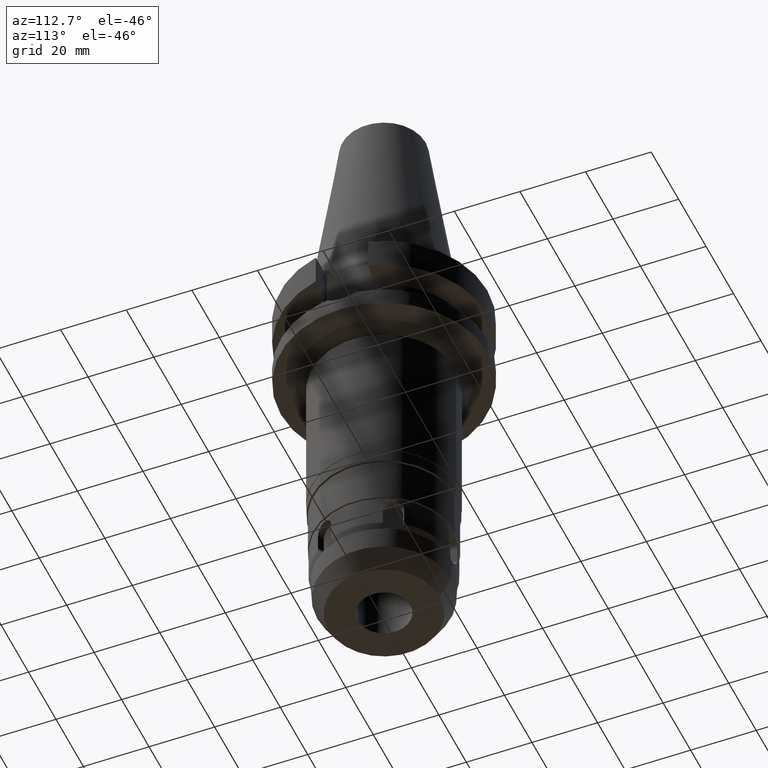
[diagram: clean part render]
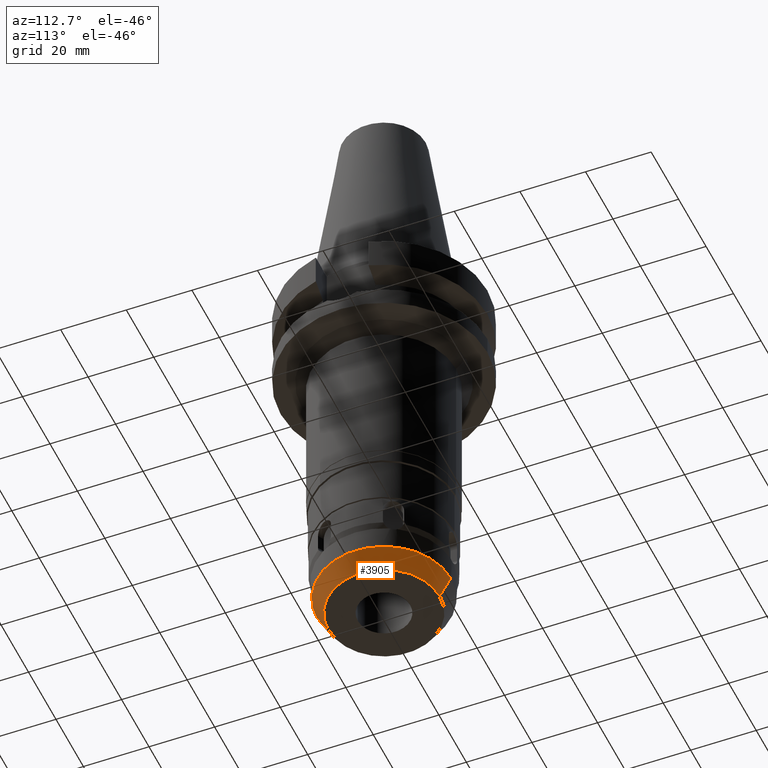
[diagram: same view with one face highlighted and labeled with its STEP entity id]
A machine part, auxiliary view. The second image highlights one B-rep face of the part: STEP entity #3905.
In plain terms, the highlighted conical surface has half-angle 30 deg.
Its self-contained STEP definition (entity closure, byte-faithful):
#1925=DIRECTION('',(-1.655371514058E-14,4.999999999999E-1,-8.660254037845E-1));
#1926=VECTOR('',#1925,6.768854555979E0);
#1927=CARTESIAN_POINT('',(1.106599301772E-13,-2.038442727799E1,-1.14138E2));
#1928=LINE('',#1927,#1926);
#1932=DIRECTION('',(0.E0,-4.999999999999E-1,-8.660254037845E-1));
#1933=VECTOR('',#1932,6.768854555979E0);
#1934=CARTESIAN_POINT('',(0.E0,2.038442727799E1,-1.14138E2));
#1935=LINE('',#1934,#1933);
#1939=CARTESIAN_POINT('',(0.E0,0.E0,-1.14138E2));
#1940=DIRECTION('',(0.E0,0.E0,1.E0));
#1941=DIRECTION('',(0.E0,-1.E0,0.E0));
#1942=AXIS2_PLACEMENT_3D('',#1939,#1940,#1941);
#1947=CARTESIAN_POINT('',(0.E0,0.E0,-1.2E2));
#1948=DIRECTION('',(0.E0,0.E0,1.E0));
#1949=DIRECTION('',(0.E0,-1.E0,0.E0));
#1950=AXIS2_PLACEMENT_3D('',#1947,#1948,#1949);
#2327=CARTESIAN_POINT('',(0.E0,-1.7E1,-1.2E2));
#2328=CARTESIAN_POINT('',(0.E0,1.7E1,-1.2E2));
#2329=VERTEX_POINT('',#2327);
#2330=VERTEX_POINT('',#2328);
#2331=CARTESIAN_POINT('',(0.E0,2.038442727799E1,-1.14138E2));
#2332=VERTEX_POINT('',#2331);
#2333=CARTESIAN_POINT('',(1.106599301772E-13,-2.038442727799E1,-1.14138E2));
#2334=VERTEX_POINT('',#2333);
#3893=CARTESIAN_POINT('',(0.E0,0.E0,-1.17069E2));
#3894=DIRECTION('',(0.E0,0.E0,1.E0));
#3895=DIRECTION('',(0.E0,1.E0,0.E0));
#3896=AXIS2_PLACEMENT_3D('',#3893,#3894,#3895);
#3897=CONICAL_SURFACE('',#3896,1.869221363899E1,3.E1);
#3898=ORIENTED_EDGE('',*,*,#3883,.T.);
#3900=ORIENTED_EDGE('',*,*,#3899,.F.);
#3901=ORIENTED_EDGE('',*,*,#3886,.F.);
#3902=ORIENTED_EDGE('',*,*,#3444,.T.);
#3903=EDGE_LOOP('',(#3898,#3900,#3901,#3902));
#3904=FACE_OUTER_BOUND('',#3903,.F.);
#1943=CIRCLE('',#1942,2.038442727799E1);
#1951=CIRCLE('',#1950,1.7E1);
#3444=EDGE_CURVE('',#2334,#2332,#1943,.T.);
#3883=EDGE_CURVE('',#2332,#2330,#1935,.T.);
#3886=EDGE_CURVE('',#2334,#2329,#1928,.T.);
#3899=EDGE_CURVE('',#2329,#2330,#1951,.T.);
#3905=ADVANCED_FACE('',(#3904),#3897,.T.);